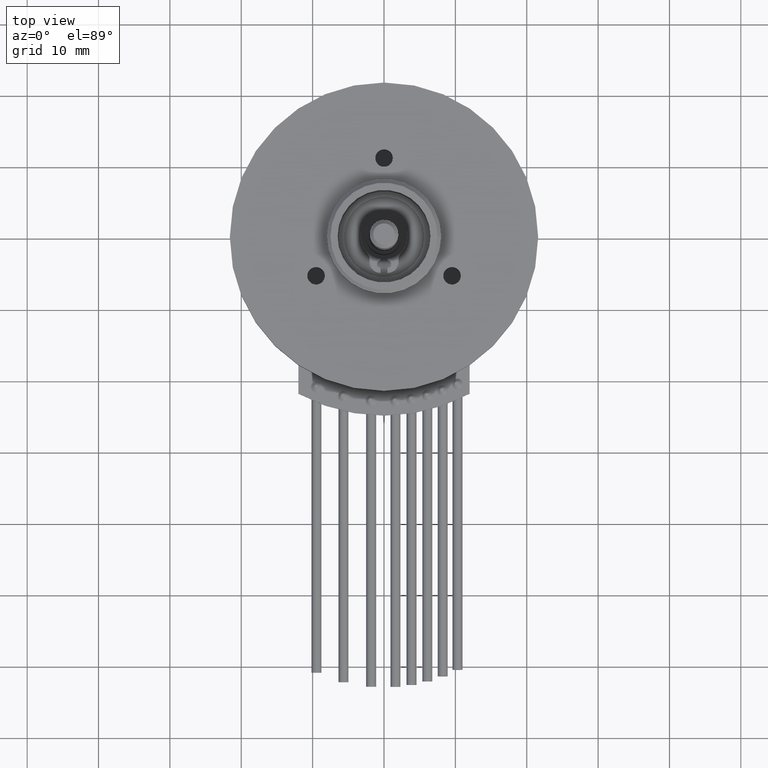
[diagram: clean part render]
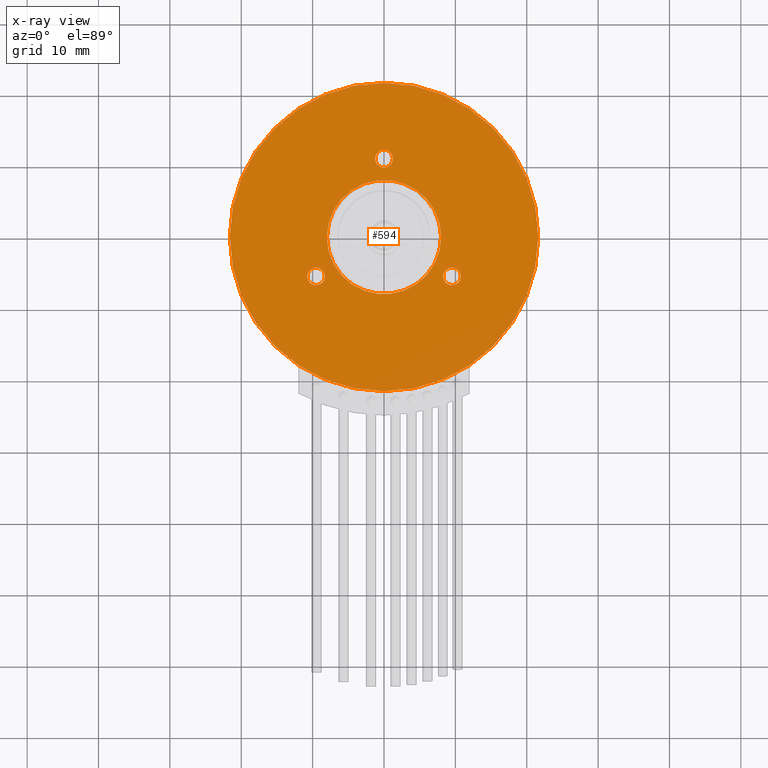
[diagram: x-ray — body ghosted, one internal face saturated and labeled with its STEP entity id]
A machine part, top view, then the same camera in x-ray: the body is ghosted and one INTERNAL B-rep face — a face not visible from any outside direction — is saturated and labeled: STEP entity #594.
In plain terms, the highlighted planar face has unit normal (0, 0, -1).
Its self-contained STEP definition (entity closure, byte-faithful):
#354=CARTESIAN_POINT('',(-8.0,9.797174E-016,0.0));
#355=VERTEX_POINT('',#354);
#356=CARTESIAN_POINT('',(0.0,0.0,0.0));
#357=DIRECTION('',(0.0,0.0,1.0));
#358=DIRECTION('',(1.0,0.0,0.0));
#359=AXIS2_PLACEMENT_3D('',#356,#357,#358);
#360=CIRCLE('',#359,8.0);
#361=EDGE_CURVE('',#355,#355,#360,.T.);
#404=CARTESIAN_POINT('',(8.296779441628825,-5.500000000000004,0.0));
#405=VERTEX_POINT('',#404);
#406=CARTESIAN_POINT('',(9.526279441628825,-5.500000000000004,0.0));
#407=DIRECTION('',(0.0,0.0,1.0));
#408=DIRECTION('',(1.0,0.0,0.0));
#409=AXIS2_PLACEMENT_3D('',#406,#407,#408);
#410=CIRCLE('',#409,1.229500000000000);
#411=EDGE_CURVE('',#405,#405,#410,.T.);
#453=CARTESIAN_POINT('',(-10.755779441628825,-5.500000000000000,0.0));
#454=VERTEX_POINT('',#453);
#455=CARTESIAN_POINT('',(-9.526279441628825,-5.500000000000000,0.0));
#456=DIRECTION('',(0.0,0.0,1.0));
#457=DIRECTION('',(1.0,0.0,0.0));
#458=AXIS2_PLACEMENT_3D('',#455,#456,#457);
#459=CIRCLE('',#458,1.229500000000000);
#460=EDGE_CURVE('',#454,#454,#459,.T.);
#502=CARTESIAN_POINT('',(-1.229500000000001,11.0,0.0));
#503=VERTEX_POINT('',#502);
#504=CARTESIAN_POINT('',(-1.347111E-015,11.0,0.0));
#505=DIRECTION('',(0.0,0.0,1.0));
#506=DIRECTION('',(1.0,0.0,0.0));
#507=AXIS2_PLACEMENT_3D('',#504,#505,#506);
#508=CIRCLE('',#507,1.229500000000000);
#509=EDGE_CURVE('',#503,#503,#508,.T.);
#541=CARTESIAN_POINT('',(21.600000000000001,2.645237E-015,0.0));
#542=VERTEX_POINT('',#541);
#543=CARTESIAN_POINT('',(0.0,0.0,0.0));
#544=DIRECTION('',(0.0,0.0,-1.0));
#545=DIRECTION('',(-1.0,0.0,0.0));
#546=AXIS2_PLACEMENT_3D('',#543,#544,#545);
#547=CIRCLE('',#546,21.600000000000001);
#548=EDGE_CURVE('',#542,#542,#547,.T.);
#574=CARTESIAN_POINT('',(0.0,0.0,0.0));
#575=DIRECTION('',(0.0,0.0,-1.0));
#576=DIRECTION('',(-1.0,0.0,0.0));
#577=AXIS2_PLACEMENT_3D('',#574,#575,#576);
#578=PLANE('',#577);
#579=ORIENTED_EDGE('',*,*,#548,.T.);
#580=EDGE_LOOP('',(#579));
#581=FACE_OUTER_BOUND('',#580,.T.);
#582=ORIENTED_EDGE('',*,*,#361,.T.);
#583=EDGE_LOOP('',(#582));
#584=FACE_BOUND('',#583,.T.);
#585=ORIENTED_EDGE('',*,*,#411,.T.);
#586=EDGE_LOOP('',(#585));
#587=FACE_BOUND('',#586,.T.);
#588=ORIENTED_EDGE('',*,*,#460,.T.);
#589=EDGE_LOOP('',(#588));
#590=FACE_BOUND('',#589,.T.);
#591=ORIENTED_EDGE('',*,*,#509,.T.);
#592=EDGE_LOOP('',(#591));
#593=FACE_BOUND('',#592,.T.);
#594=ADVANCED_FACE('',(#581,#584,#587,#590,#593),#578,.T.);